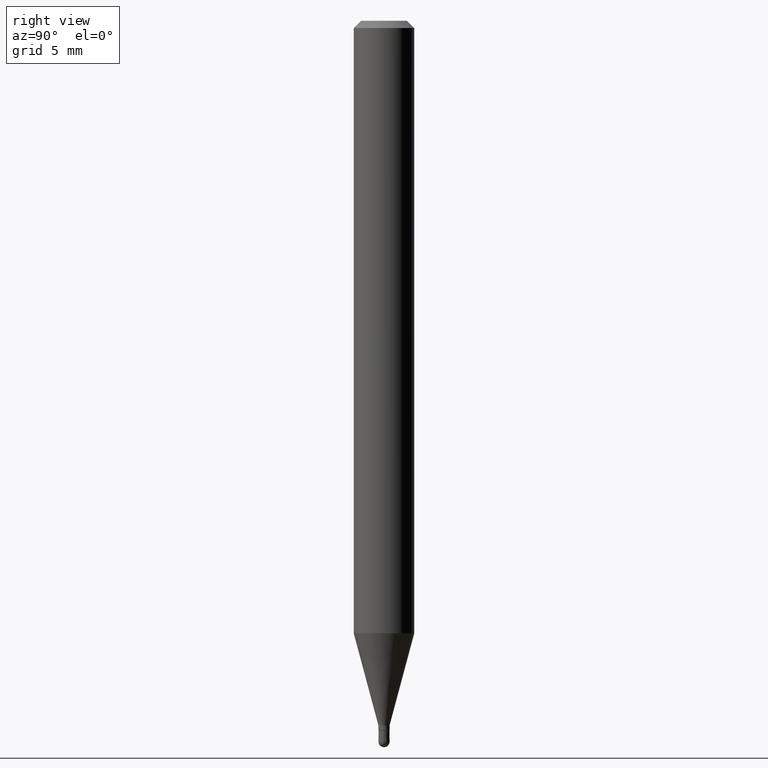
[diagram: clean part render]
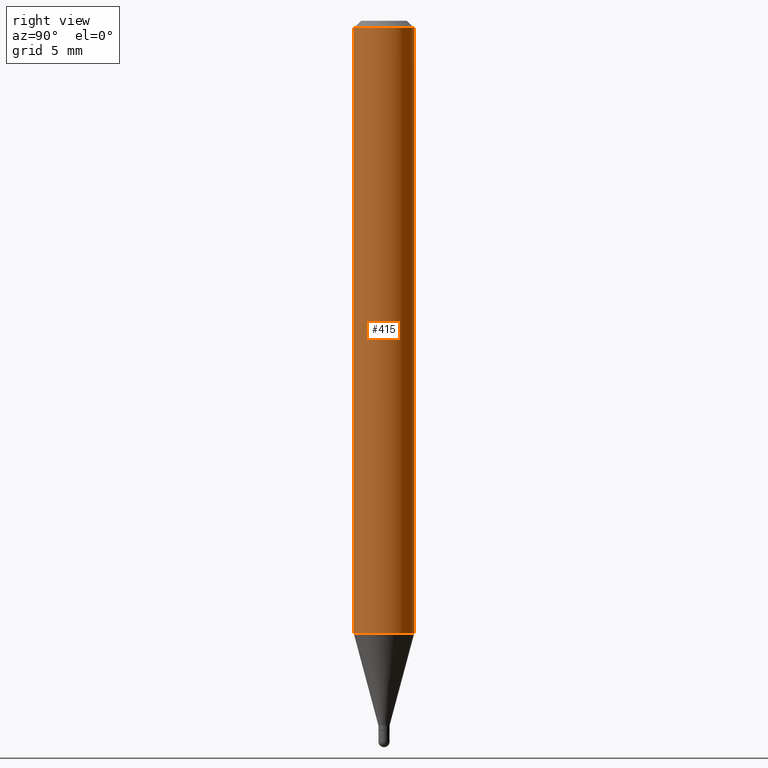
[diagram: same view with one face highlighted and labeled with its STEP entity id]
A machine part, right view. The second image highlights one B-rep face of the part: STEP entity #415.
In plain terms, the highlighted cylindrical surface (edge-blend (fillet) strip) has radius 1.5875 mm, axis along (-0, 0, 1).
Its self-contained STEP definition (entity closure, byte-faithful):
#13 = VECTOR ( 'NONE', #340, 39.37007874015748143 ) ;
#24 = CARTESIAN_POINT ( 'NONE',  ( 3.092698447269238654E-29, -4.415557622705228023E-15, -1.264665408813987479 ) ) ;
#43 = VECTOR ( 'NONE', #188, 39.37007874015748143 ) ;
#54 = ORIENTED_EDGE ( 'NONE', *, *, #382, .T. ) ;
#61 = AXIS2_PLACEMENT_3D ( 'NONE', #462, #422, #388 ) ;
#75 = FACE_OUTER_BOUND ( 'NONE', #104, .T. ) ;
#80 = EDGE_CURVE ( 'NONE', #162, #198, #177, .T. ) ;
#81 = LINE ( 'NONE', #228, #43 ) ;
#104 = EDGE_LOOP ( 'NONE', ( #54, #372, #329, #266 ) ) ;
#106 = DIRECTION ( 'NONE',  ( -2.445467730606780965E-29, 3.491482879132568905E-15, 1.000000000000000000 ) ) ;
#107 = VERTEX_POINT ( 'NONE', #424 ) ;
#118 = CARTESIAN_POINT ( 'NONE',  ( 4.440892098500936776E-16, 0.06249999999999993755, -0.01499999999999997863 ) ) ;
#159 = CARTESIAN_POINT ( 'NONE',  ( -4.364351673553607559E-16, -0.06250000000000441314, -1.264665408813987257 ) ) ;
#162 = VERTEX_POINT ( 'NONE', #210 ) ;
#177 = LINE ( 'NONE', #270, #13 ) ;
#188 = DIRECTION ( 'NONE',  ( -2.445467730606780965E-29, 3.491482879132568905E-15, 1.000000000000000000 ) ) ;
#191 = VERTEX_POINT ( 'NONE', #159 ) ;
#198 = VERTEX_POINT ( 'NONE', #118 ) ;
#210 = CARTESIAN_POINT ( 'NONE',  ( 4.440892098500932831E-16, 0.06249999999999557992, -1.264665408813987924 ) ) ;
#214 = CIRCLE ( 'NONE', #353, 0.06250000000000000000 ) ;
#222 = CARTESIAN_POINT ( 'NONE',  ( 0.000000000000000000, 0.000000000000000000, 0.000000000000000000 ) ) ;
#228 = CARTESIAN_POINT ( 'NONE',  ( -4.364351673553916201E-16, -0.06250000000000000000, 2.182176799457855566E-16 ) ) ;
#237 = CIRCLE ( 'NONE', #61, 0.06250000000000000000 ) ;
#266 = ORIENTED_EDGE ( 'NONE', *, *, #496, .F. ) ;
#270 = CARTESIAN_POINT ( 'NONE',  ( 4.440892098500625669E-16, 0.06250000000000000000, -2.182176799457855566E-16 ) ) ;
#299 = DIRECTION ( 'NONE',  ( -2.445467730606780965E-29, 3.491482879132568905E-15, 1.000000000000000000 ) ) ;
#308 = CYLINDRICAL_SURFACE ( 'NONE', #397, 0.06250000000000000000 ) ;
#329 = ORIENTED_EDGE ( 'NONE', *, *, #457, .F. ) ;
#338 = DIRECTION ( 'NONE',  ( -6.982962677686265922E-15, -1.000000000000000000, 4.370956789862821150E-15 ) ) ;
#340 = DIRECTION ( 'NONE',  ( -2.445467730606780965E-29, 3.491482879132568905E-15, 1.000000000000000000 ) ) ;
#353 = AXIS2_PLACEMENT_3D ( 'NONE', #24, #299, #338 ) ;
#372 = ORIENTED_EDGE ( 'NONE', *, *, #80, .T. ) ;
#382 = EDGE_CURVE ( 'NONE', #191, #162, #214, .T. ) ;
#384 = DIRECTION ( 'NONE',  ( -6.982962677686265922E-15, -1.000000000000000000, 3.491482879132568905E-15 ) ) ;
#388 = DIRECTION ( 'NONE',  ( -6.982962677686265922E-15, -1.000000000000000000, 3.483106191921935554E-15 ) ) ;
#397 = AXIS2_PLACEMENT_3D ( 'NONE', #222, #106, #384 ) ;
#415 = ADVANCED_FACE ( 'NONE', ( #75 ), #308, .T. ) ;
#422 = DIRECTION ( 'NONE',  ( -2.445467730606780965E-29, 3.491482879132568905E-15, 1.000000000000000000 ) ) ;
#424 = CARTESIAN_POINT ( 'NONE',  ( -4.364351673553912750E-16, -0.06250000000000005551, -0.01499999999999954321 ) ) ;
#457 = EDGE_CURVE ( 'NONE', #107, #198, #237, .T. ) ;
#462 = CARTESIAN_POINT ( 'NONE',  ( 3.668201595910112680E-31, -5.237224318698770158E-17, -0.01499999999999976179 ) ) ;
#496 = EDGE_CURVE ( 'NONE', #191, #107, #81, .T. ) ;